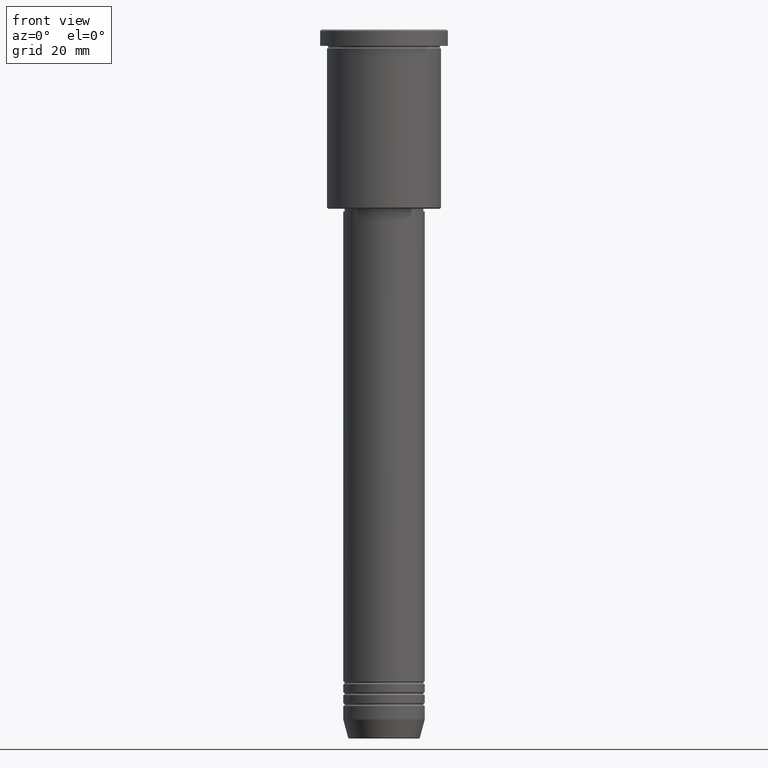
[diagram: clean part render]
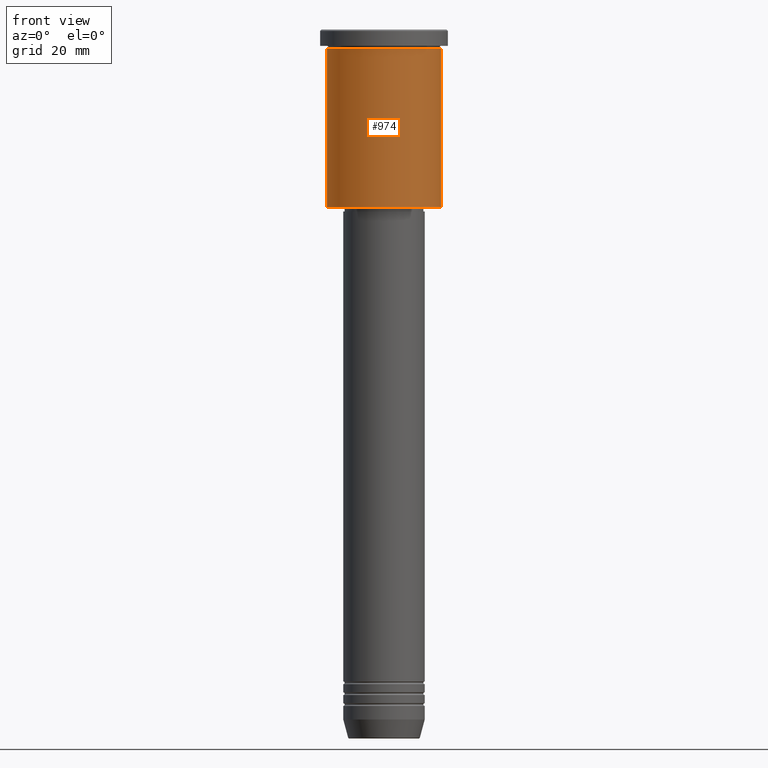
[diagram: same view with one face highlighted and labeled with its STEP entity id]
A machine part, front view. The second image highlights one B-rep face of the part: STEP entity #974.
In plain terms, the highlighted cylindrical surface (partial cylindrical patch) has radius 21 mm, axis along (-0, -0, 1).
Its self-contained STEP definition (entity closure, byte-faithful):
#4 = EDGE_CURVE ( 'NONE', #109, #1127, #451, .T. ) ;
#47 = DIRECTION ( 'NONE',  ( -0.000000000000000000, -0.000000000000000000, 1.000000000000000000 ) ) ;
#54 = AXIS2_PLACEMENT_3D ( 'NONE', #873, #47, #331 ) ;
#69 = CARTESIAN_POINT ( 'NONE',  ( 21.00000000000000000, 0.000000000000000000, 0.000000000000000000 ) ) ;
#76 = VECTOR ( 'NONE', #282, 1000.000000000000000 ) ;
#109 = VERTEX_POINT ( 'NONE', #1132 ) ;
#150 = DIRECTION ( 'NONE',  ( -0.000000000000000000, -0.000000000000000000, 1.000000000000000000 ) ) ;
#209 = VERTEX_POINT ( 'NONE', #455 ) ;
#241 = CARTESIAN_POINT ( 'NONE',  ( 0.000000000000000000, 0.000000000000000000, 0.000000000000000000 ) ) ;
#282 = DIRECTION ( 'NONE',  ( -0.000000000000000000, -0.000000000000000000, 1.000000000000000000 ) ) ;
#284 = EDGE_LOOP ( 'NONE', ( #522, #940, #1024, #919 ) ) ;
#331 = DIRECTION ( 'NONE',  ( 1.000000000000000000, 0.000000000000000000, 0.000000000000000000 ) ) ;
#344 = LINE ( 'NONE', #69, #387 ) ;
#387 = VECTOR ( 'NONE', #781, 1000.000000000000000 ) ;
#447 = CARTESIAN_POINT ( 'NONE',  ( 21.00000000000000000, 0.000000000000000000, -6.999999999999993783 ) ) ;
#451 = CIRCLE ( 'NONE', #54, 21.00000000000000000 ) ;
#455 = CARTESIAN_POINT ( 'NONE',  ( -21.00000000000000000, 2.571758278209441661E-15, -65.50000000000002842 ) ) ;
#458 = CARTESIAN_POINT ( 'NONE',  ( -21.00000000000000000, 2.571758278209441661E-15, 0.000000000000000000 ) ) ;
#494 = CARTESIAN_POINT ( 'NONE',  ( 21.00000000000000000, 0.000000000000000000, -65.50000000000002842 ) ) ;
#510 = EDGE_CURVE ( 'NONE', #209, #794, #1071, .T. ) ;
#522 = ORIENTED_EDGE ( 'NONE', *, *, #655, .F. ) ;
#600 = DIRECTION ( 'NONE',  ( -0.000000000000000000, -0.000000000000000000, 1.000000000000000000 ) ) ;
#645 = LINE ( 'NONE', #458, #76 ) ;
#655 = EDGE_CURVE ( 'NONE', #209, #109, #645, .T. ) ;
#686 = FACE_OUTER_BOUND ( 'NONE', #284, .T. ) ;
#704 = AXIS2_PLACEMENT_3D ( 'NONE', #968, #150, #809 ) ;
#746 = AXIS2_PLACEMENT_3D ( 'NONE', #241, #600, #964 ) ;
#781 = DIRECTION ( 'NONE',  ( -0.000000000000000000, -0.000000000000000000, 1.000000000000000000 ) ) ;
#794 = VERTEX_POINT ( 'NONE', #494 ) ;
#809 = DIRECTION ( 'NONE',  ( -1.000000000000000000, 0.000000000000000000, 0.000000000000000000 ) ) ;
#873 = CARTESIAN_POINT ( 'NONE',  ( 0.000000000000000000, 0.000000000000000000, -6.999999999999993783 ) ) ;
#919 = ORIENTED_EDGE ( 'NONE', *, *, #4, .F. ) ;
#940 = ORIENTED_EDGE ( 'NONE', *, *, #510, .T. ) ;
#964 = DIRECTION ( 'NONE',  ( 1.000000000000000000, 0.000000000000000000, 0.000000000000000000 ) ) ;
#968 = CARTESIAN_POINT ( 'NONE',  ( 0.000000000000000000, 0.000000000000000000, -65.50000000000002842 ) ) ;
#974 = ADVANCED_FACE ( 'NONE', ( #686 ), #1056, .T. ) ;
#1024 = ORIENTED_EDGE ( 'NONE', *, *, #1167, .T. ) ;
#1056 = CYLINDRICAL_SURFACE ( 'NONE', #746, 21.00000000000000000 ) ;
#1071 = CIRCLE ( 'NONE', #704, 21.00000000000000000 ) ;
#1127 = VERTEX_POINT ( 'NONE', #447 ) ;
#1132 = CARTESIAN_POINT ( 'NONE',  ( -21.00000000000000000, 2.571758278209441661E-15, -6.999999999999993783 ) ) ;
#1167 = EDGE_CURVE ( 'NONE', #794, #1127, #344, .T. ) ;